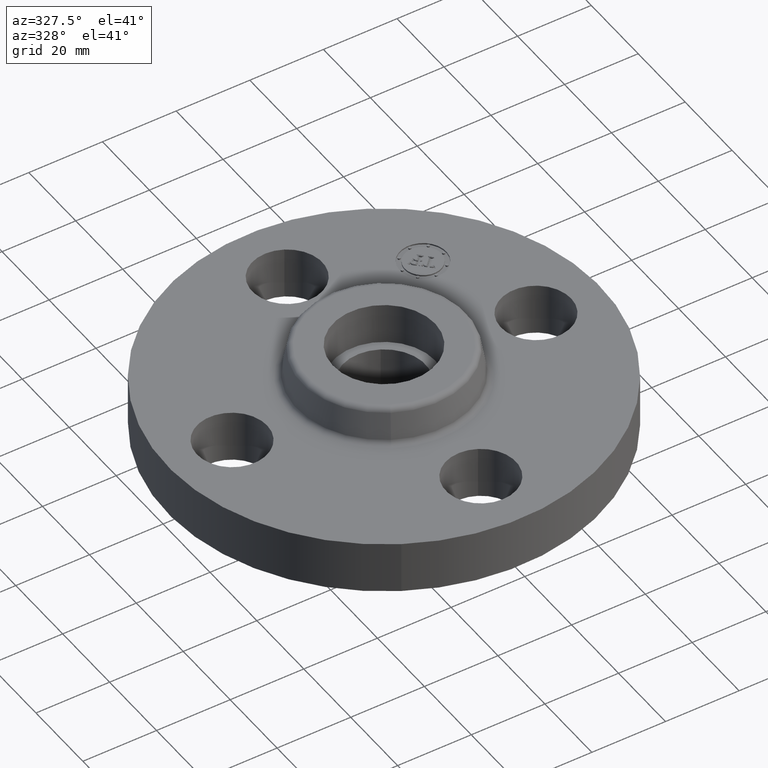
[diagram: clean part render]
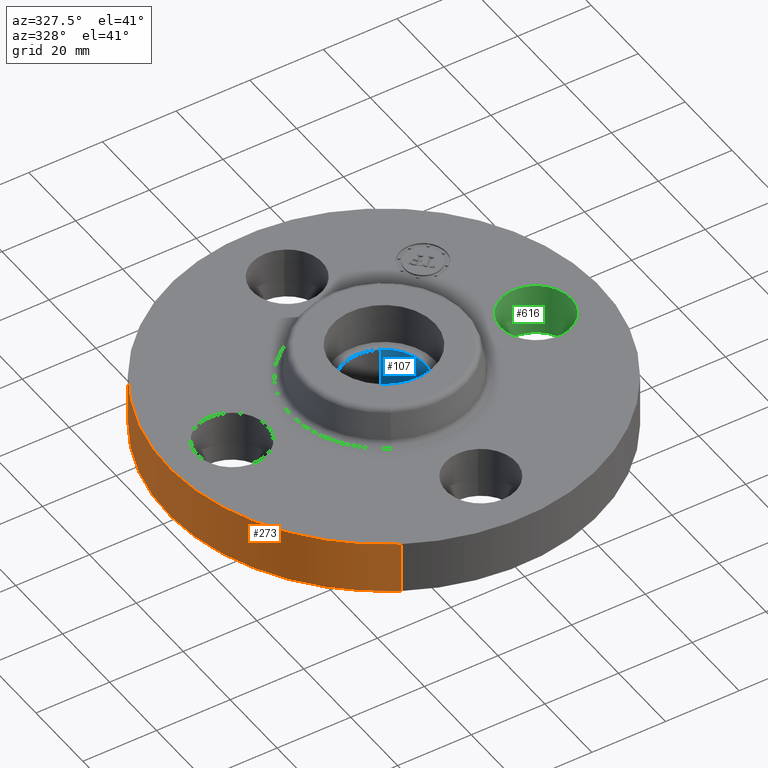
[diagram: same view with three faces highlighted in distinct colors, each labeled with its STEP entity id]
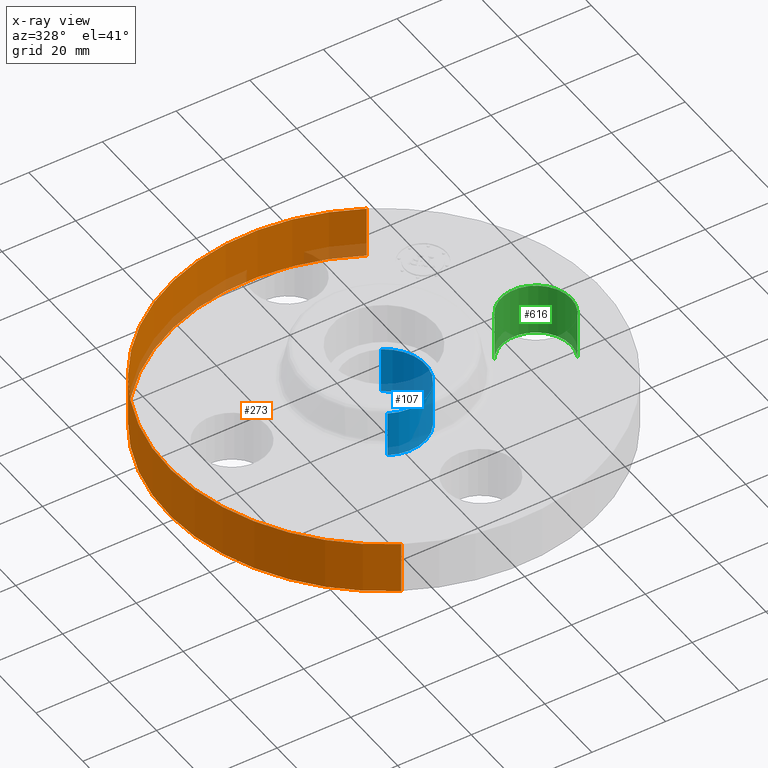
[diagram: x-ray of the same camera — body ghosted, the three highlighted faces saturated]
A machine part, auxiliary view with three faces highlighted in distinct colors.
The next image is the same camera in x-ray (body ghosted, the three faces saturated) — at least one of them is partly hidden behind the body in this view.
Their STEP definitions:

[orange] entity #273 — the highlighted cylindrical surface (partial cylindrical patch) has radius 58.674 mm, axis along (0, 0, -1).
#150=AXIS2_PLACEMENT_3D('Circle Axis2P3D',#148,#149,$) ;
#246=AXIS2_PLACEMENT_3D('Cylinder Axis2P3D',#243,#244,#245) ;
#257=AXIS2_PLACEMENT_3D('Circle Axis2P3D',#255,#256,$) ;
#148=CARTESIAN_POINT('Axis2P3D Location',(0.,0.,0.)) ;
#152=CARTESIAN_POINT('Vertex',(-1.10747299418,-2.02721571797,2.79741234551E-016)) ;
#154=CARTESIAN_POINT('Vertex',(1.10747299418,2.02721571797,2.79741234551E-016)) ;
#243=CARTESIAN_POINT('Axis2P3D Location',(0.,0.,0.470000000002)) ;
#248=CARTESIAN_POINT('Line Origine',(-1.10747299418,-2.02721571797,0.280000000001)) ;
#252=CARTESIAN_POINT('Vertex',(-1.10747299418,-2.02721571797,0.560000000002)) ;
#255=CARTESIAN_POINT('Axis2P3D Location',(0.,0.,0.560000000002)) ;
#259=CARTESIAN_POINT('Vertex',(1.10747299418,2.02721571797,0.560000000002)) ;
#262=CARTESIAN_POINT('Line Origine',(1.10747299418,2.02721571797,0.280000000001)) ;
#149=DIRECTION('Axis2P3D Direction',(0.,0.,-0.0393700787402)) ;
#244=DIRECTION('Axis2P3D Direction',(0.,0.,-0.0393700787402)) ;
#245=DIRECTION('Axis2P3D XDirection',(0.0188750212049,0.0345504945626,0.)) ;
#249=DIRECTION('Vector Direction',(0.,0.,-0.0393700787402)) ;
#256=DIRECTION('Axis2P3D Direction',(0.,0.,-0.0393700787402)) ;
#263=DIRECTION('Vector Direction',(0.,0.,-0.0393700787402)) ;
#250=VECTOR('Line Direction',#249,0.0393700787402) ;
#264=VECTOR('Line Direction',#263,0.0393700787402) ;
#268=ORIENTED_EDGE('',*,*,#156,.F.) ;
#269=ORIENTED_EDGE('',*,*,#254,.T.) ;
#270=ORIENTED_EDGE('',*,*,#261,.T.) ;
#271=ORIENTED_EDGE('',*,*,#266,.F.) ;
#273=ADVANCED_FACE('PartBody',(#272),#247,.T.) ;
#151=CIRCLE('generated circle',#150,2.31000000001) ;
#258=CIRCLE('generated circle',#257,2.31000000001) ;
#247=CYLINDRICAL_SURFACE('generated cylinder',#246,2.31000000001) ;
#156=EDGE_CURVE('',#153,#155,#151,.T.) ;
#254=EDGE_CURVE('',#153,#253,#251,.F.) ;
#261=EDGE_CURVE('',#253,#260,#258,.T.) ;
#266=EDGE_CURVE('',#155,#260,#265,.F.) ;
#267=EDGE_LOOP('',(#268,#269,#270,#271)) ;
#272=FACE_OUTER_BOUND('',#267,.T.) ;
#251=LINE('Line',#248,#250) ;
#265=LINE('Line',#262,#264) ;
#153=VERTEX_POINT('',#152) ;
#155=VERTEX_POINT('',#154) ;
#253=VERTEX_POINT('',#252) ;
#260=VERTEX_POINT('',#259) ;

[blue] entity #107 — the highlighted cylindrical surface (partial cylindrical patch) has radius 11.2268 mm, axis along (0, 0, -1).
#69=AXIS2_PLACEMENT_3D('Circle Axis2P3D',#67,#68,$) ;
#80=AXIS2_PLACEMENT_3D('Cylinder Axis2P3D',#77,#78,#79) ;
#91=AXIS2_PLACEMENT_3D('Circle Axis2P3D',#89,#90,$) ;
#62=CARTESIAN_POINT('Vertex',(-0.211906088064,-0.387891492357,0.500000000002)) ;
#64=CARTESIAN_POINT('Vertex',(0.211906088064,0.387891492357,0.500000000002)) ;
#67=CARTESIAN_POINT('Axis2P3D Location',(0.,-3.49676543189E-017,0.500000000002)) ;
#77=CARTESIAN_POINT('Axis2P3D Location',(0.,0.,0.470000000002)) ;
#82=CARTESIAN_POINT('Line Origine',(0.211906088064,0.387891492357,0.250000000001)) ;
#86=CARTESIAN_POINT('Vertex',(0.211906088064,0.387891492357,-2.30786518505E-015)) ;
#89=CARTESIAN_POINT('Axis2P3D Location',(0.,0.,-2.51767111096E-015)) ;
#93=CARTESIAN_POINT('Vertex',(-0.211906088064,-0.387891492357,-2.30786518505E-015)) ;
#96=CARTESIAN_POINT('Line Origine',(-0.211906088064,-0.387891492357,0.250000000001)) ;
#68=DIRECTION('Axis2P3D Direction',(0.,0.,-0.0393700787402)) ;
#78=DIRECTION('Axis2P3D Direction',(0.,0.,-0.0393700787402)) ;
#79=DIRECTION('Axis2P3D XDirection',(-0.0188750212049,-0.0345504945626,0.)) ;
#83=DIRECTION('Vector Direction',(0.,0.,-0.0393700787402)) ;
#90=DIRECTION('Axis2P3D Direction',(0.,0.,-0.0393700787402)) ;
#97=DIRECTION('Vector Direction',(0.,0.,-0.0393700787402)) ;
#84=VECTOR('Line Direction',#83,0.0393700787402) ;
#98=VECTOR('Line Direction',#97,0.0393700787402) ;
#102=ORIENTED_EDGE('',*,*,#88,.T.) ;
#103=ORIENTED_EDGE('',*,*,#95,.T.) ;
#104=ORIENTED_EDGE('',*,*,#100,.F.) ;
#105=ORIENTED_EDGE('',*,*,#71,.F.) ;
#107=ADVANCED_FACE('PartBody',(#106),#81,.F.) ;
#70=CIRCLE('generated circle',#69,0.442000000002) ;
#92=CIRCLE('generated circle',#91,0.442000000002) ;
#81=CYLINDRICAL_SURFACE('generated cylinder',#80,0.442000000002) ;
#71=EDGE_CURVE('',#65,#63,#70,.T.) ;
#88=EDGE_CURVE('',#65,#87,#85,.T.) ;
#95=EDGE_CURVE('',#87,#94,#92,.T.) ;
#100=EDGE_CURVE('',#63,#94,#99,.T.) ;
#101=EDGE_LOOP('',(#102,#103,#104,#105)) ;
#106=FACE_OUTER_BOUND('',#101,.T.) ;
#85=LINE('Line',#82,#84) ;
#99=LINE('Line',#96,#98) ;
#63=VERTEX_POINT('',#62) ;
#65=VERTEX_POINT('',#64) ;
#87=VERTEX_POINT('',#86) ;
#94=VERTEX_POINT('',#93) ;

[green] entity #616 — the highlighted cylindrical surface (partial cylindrical patch) has radius 9.525 mm, axis along (0, -0, -1).
#177=AXIS2_PLACEMENT_3D('Circle Axis2P3D',#175,#176,$) ;
#589=AXIS2_PLACEMENT_3D('Cylinder Axis2P3D',#586,#587,#588) ;
#607=AXIS2_PLACEMENT_3D('Circle Axis2P3D',#605,#606,$) ;
#170=CARTESIAN_POINT('Vertex',(1.95409346072,-0.179784576977,0.)) ;
#172=CARTESIAN_POINT('Vertex',(1.2959065393,0.179784576977,0.)) ;
#175=CARTESIAN_POINT('Axis2P3D Location',(1.62500000001,0.,0.)) ;
#586=CARTESIAN_POINT('Axis2P3D Location',(1.62500000001,0.,0.556062992128)) ;
#591=CARTESIAN_POINT('Line Origine',(1.2959065393,0.179784576977,0.280000000001)) ;
#595=CARTESIAN_POINT('Vertex',(1.2959065393,0.179784576977,0.560000000002)) ;
#598=CARTESIAN_POINT('Line Origine',(1.95409346072,-0.179784576977,0.280000000001)) ;
#602=CARTESIAN_POINT('Vertex',(1.95409346072,-0.179784576977,0.560000000002)) ;
#605=CARTESIAN_POINT('Axis2P3D Location',(1.62500000001,0.,0.560000000002)) ;
#176=DIRECTION('Axis2P3D Direction',(0.,0.,-0.0393700787402)) ;
#587=DIRECTION('Axis2P3D Direction',(0.,-0.,-0.0393700787402)) ;
#588=DIRECTION('Axis2P3D XDirection',(0.0345504945626,-0.0188750212049,0.)) ;
#592=DIRECTION('Vector Direction',(0.,0.,-0.0393700787402)) ;
#599=DIRECTION('Vector Direction',(0.,0.,-0.0393700787402)) ;
#606=DIRECTION('Axis2P3D Direction',(0.,-0.,-0.0393700787402)) ;
#593=VECTOR('Line Direction',#592,0.0393700787402) ;
#600=VECTOR('Line Direction',#599,0.0393700787402) ;
#611=ORIENTED_EDGE('',*,*,#597,.F.) ;
#612=ORIENTED_EDGE('',*,*,#179,.T.) ;
#613=ORIENTED_EDGE('',*,*,#604,.T.) ;
#614=ORIENTED_EDGE('',*,*,#609,.F.) ;
#616=ADVANCED_FACE('PartBody',(#615),#590,.F.) ;
#178=CIRCLE('generated circle',#177,0.375000000001) ;
#608=CIRCLE('generated circle',#607,0.375000000001) ;
#590=CYLINDRICAL_SURFACE('generated cylinder',#589,0.375000000001) ;
#179=EDGE_CURVE('',#173,#171,#178,.T.) ;
#597=EDGE_CURVE('',#173,#596,#594,.F.) ;
#604=EDGE_CURVE('',#171,#603,#601,.F.) ;
#609=EDGE_CURVE('',#596,#603,#608,.T.) ;
#610=EDGE_LOOP('',(#611,#612,#613,#614)) ;
#615=FACE_OUTER_BOUND('',#610,.T.) ;
#594=LINE('Line',#591,#593) ;
#601=LINE('Line',#598,#600) ;
#171=VERTEX_POINT('',#170) ;
#173=VERTEX_POINT('',#172) ;
#596=VERTEX_POINT('',#595) ;
#603=VERTEX_POINT('',#602) ;